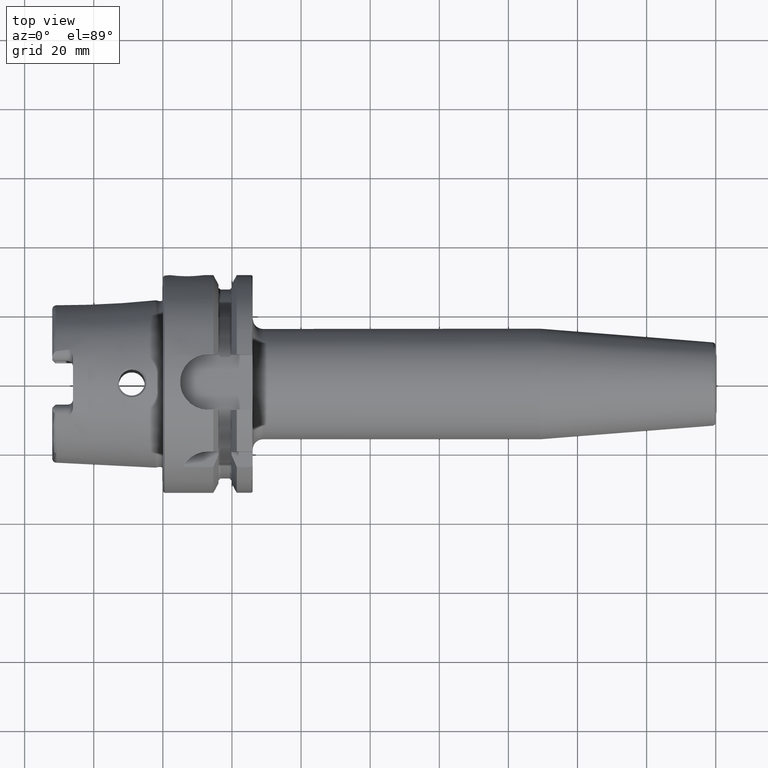
[diagram: clean part render]
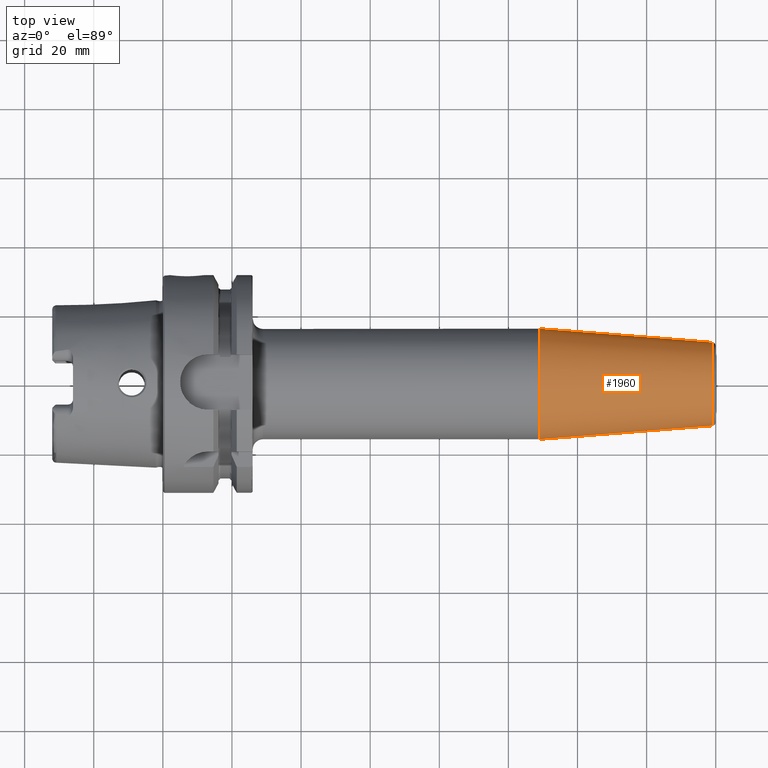
[diagram: same view with one face highlighted and labeled with its STEP entity id]
A machine part, top view. The second image highlights one B-rep face of the part: STEP entity #1960.
In plain terms, the highlighted conical surface has half-angle 4.5 deg.
Its self-contained STEP definition (entity closure, byte-faithful):
#215=FACE_OUTER_BOUND('',#334,.T.);
#334=EDGE_LOOP('',(#1335,#1336,#1337,#1338,#1339));
#461=LINE('',#2985,#568);
#568=VECTOR('',#2383,14.);
#679=CIRCLE('',#2107,12.0725268420749);
#680=CIRCLE('',#2108,12.0725268420749);
#682=CIRCLE('',#2112,16.);
#804=VERTEX_POINT('',#2975);
#805=VERTEX_POINT('',#2977);
#807=VERTEX_POINT('',#2984);
#1011=EDGE_CURVE('',#804,#805,#679,.T.);
#1012=EDGE_CURVE('',#805,#804,#680,.T.);
#1014=EDGE_CURVE('',#805,#807,#461,.T.);
#1015=EDGE_CURVE('',#807,#807,#682,.T.);
#1335=ORIENTED_EDGE('',*,*,#1012,.F.);
#1336=ORIENTED_EDGE('',*,*,#1014,.T.);
#1337=ORIENTED_EDGE('',*,*,#1015,.T.);
#1338=ORIENTED_EDGE('',*,*,#1014,.F.);
#1339=ORIENTED_EDGE('',*,*,#1011,.F.);
#1941=CONICAL_SURFACE('',#2111,14.,0.0785398163397448);
#1960=ADVANCED_FACE('',(#215),#1941,.T.);
#2107=AXIS2_PLACEMENT_3D('',#2978,#2373,#2374);
#2108=AXIS2_PLACEMENT_3D('',#2979,#2375,#2376);
#2111=AXIS2_PLACEMENT_3D('',#2983,#2381,#2382);
#2112=AXIS2_PLACEMENT_3D('',#2986,#2384,#2385);
#2373=DIRECTION('center_axis',(1.,0.,0.));
#2374=DIRECTION('ref_axis',(0.,-1.,3.06161699786838E-17));
#2375=DIRECTION('center_axis',(1.,0.,0.));
#2376=DIRECTION('ref_axis',(0.,-1.,3.06161699786838E-17));
#2381=DIRECTION('center_axis',(-1.,0.,0.));
#2382=DIRECTION('ref_axis',(0.,1.,0.));
#2383=DIRECTION('',(-0.996917333733128,-0.078459095727845,-9.60846804471011E-18));
#2384=DIRECTION('center_axis',(1.,0.,0.));
#2385=DIRECTION('ref_axis',(0.,0.,-1.));
#2975=CARTESIAN_POINT('',(159.078459095728,-1.47845813547676E-15,12.0725268420749));
#2977=CARTESIAN_POINT('',(159.078459095728,-12.0725268420749,-1.47845813547676E-15));
#2978=CARTESIAN_POINT('Origin',(159.078459095728,0.,-1.84807266934594E-15));
#2979=CARTESIAN_POINT('Origin',(159.078459095728,0.,-1.84807266934594E-15));
#2983=CARTESIAN_POINT('Origin',(134.587590527651,0.,0.));
#2984=CARTESIAN_POINT('',(109.175181055301,-16.,-1.95943487863577E-15));
#2985=CARTESIAN_POINT('',(134.587590527651,-14.,-1.71450551880629E-15));
#2986=CARTESIAN_POINT('Origin',(109.175181055301,0.,0.));